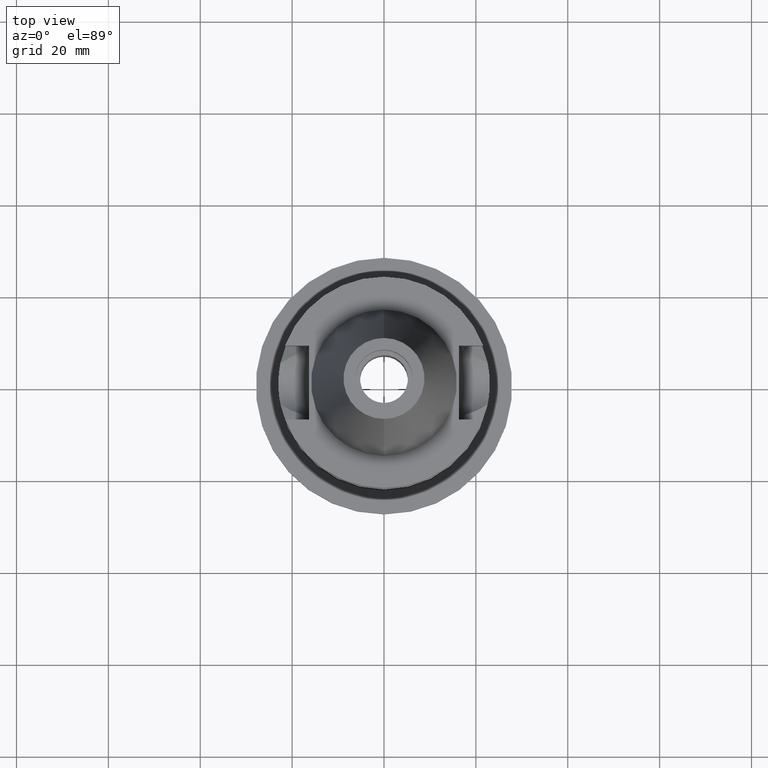
[diagram: clean part render]
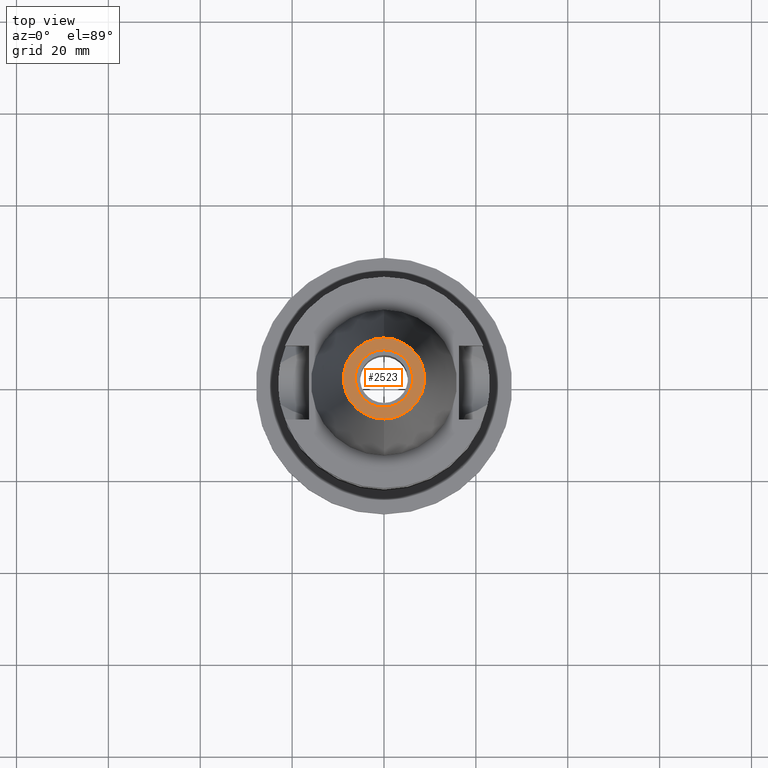
[diagram: same view with one face highlighted and labeled with its STEP entity id]
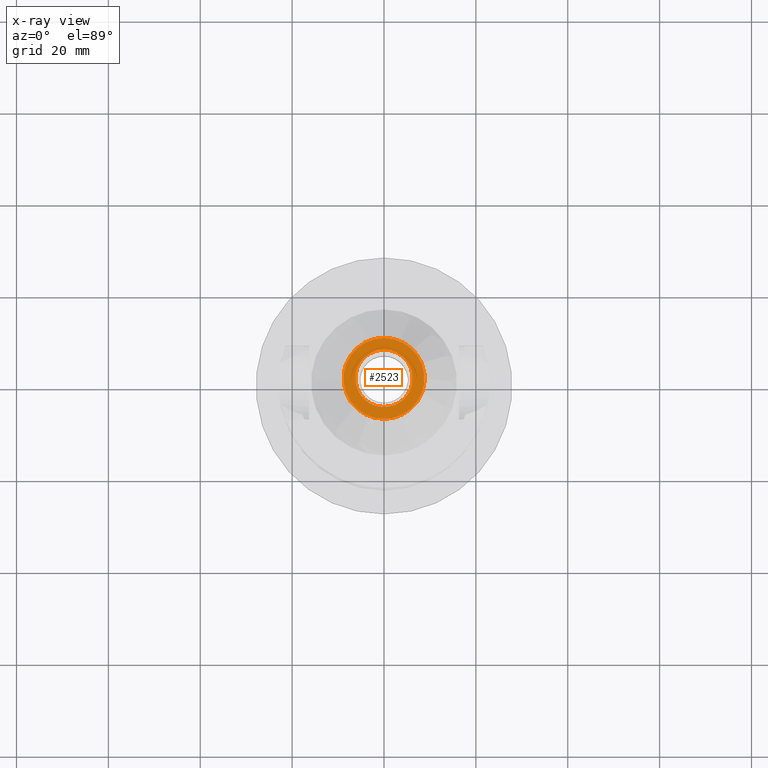
[diagram: x-ray of the same camera — body ghosted, the highlighted face saturated]
A machine part, top view. The second image highlights one B-rep face of the part: STEP entity #2523.
The next image is the same camera in x-ray: the body ghosted, the highlighted face saturated — about 0% of this face is hidden behind the body in this view.
In plain terms, the highlighted planar face has unit normal (0, 0, -1).
Its self-contained STEP definition (entity closure, byte-faithful):
#17=CARTESIAN_POINT('',(0.E0,1.521011324541E-14,4.84E1));
#18=DIRECTION('',(0.E0,0.E0,-1.E0));
#19=DIRECTION('',(0.E0,-1.E0,0.E0));
#20=AXIS2_PLACEMENT_3D('',#17,#18,#19);
#26=CARTESIAN_POINT('',(0.E0,1.521011324541E-14,4.84E1));
#27=DIRECTION('',(0.E0,0.E0,-1.E0));
#28=DIRECTION('',(0.E0,1.E0,0.E0));
#29=AXIS2_PLACEMENT_3D('',#26,#27,#28);
#34=CARTESIAN_POINT('',(0.E0,1.902121408436E-14,4.84E1));
#35=DIRECTION('',(0.E0,0.E0,1.E0));
#36=DIRECTION('',(0.E0,-1.E0,0.E0));
#37=AXIS2_PLACEMENT_3D('',#34,#35,#36);
#42=CARTESIAN_POINT('',(0.E0,1.902121408436E-14,4.84E1));
#43=DIRECTION('',(0.E0,0.E0,1.E0));
#44=DIRECTION('',(0.E0,1.E0,0.E0));
#45=AXIS2_PLACEMENT_3D('',#42,#43,#44);
#2194=CARTESIAN_POINT('',(0.E0,-8.816791732783E0,4.84E1));
#2195=CARTESIAN_POINT('',(0.E0,8.816791732783E0,4.84E1));
#2196=VERTEX_POINT('',#2194);
#2197=VERTEX_POINT('',#2195);
#2198=CARTESIAN_POINT('',(0.E0,-6.25E0,4.84E1));
#2199=CARTESIAN_POINT('',(0.E0,6.25E0,4.84E1));
#2200=VERTEX_POINT('',#2198);
#2201=VERTEX_POINT('',#2199);
#2506=CARTESIAN_POINT('',(0.E0,1.817375849935E-14,4.84E1));
#2507=DIRECTION('',(0.E0,0.E0,-1.E0));
#2508=DIRECTION('',(0.E0,-1.E0,0.E0));
#2509=AXIS2_PLACEMENT_3D('',#2506,#2507,#2508);
#2510=PLANE('',#2509);
#2512=ORIENTED_EDGE('',*,*,#2511,.T.);
#2514=ORIENTED_EDGE('',*,*,#2513,.T.);
#2515=EDGE_LOOP('',(#2512,#2514));
#2516=FACE_OUTER_BOUND('',#2515,.F.);
#2518=ORIENTED_EDGE('',*,*,#2517,.T.);
#2520=ORIENTED_EDGE('',*,*,#2519,.T.);
#2521=EDGE_LOOP('',(#2518,#2520));
#2522=FACE_BOUND('',#2521,.F.);
#21=CIRCLE('',#20,8.816791732783E0);
#30=CIRCLE('',#29,8.816791732783E0);
#38=CIRCLE('',#37,6.25E0);
#46=CIRCLE('',#45,6.25E0);
#2511=EDGE_CURVE('',#2196,#2197,#21,.T.);
#2513=EDGE_CURVE('',#2197,#2196,#30,.T.);
#2517=EDGE_CURVE('',#2200,#2201,#38,.T.);
#2519=EDGE_CURVE('',#2201,#2200,#46,.T.);
#2523=ADVANCED_FACE('',(#2516,#2522),#2510,.F.);